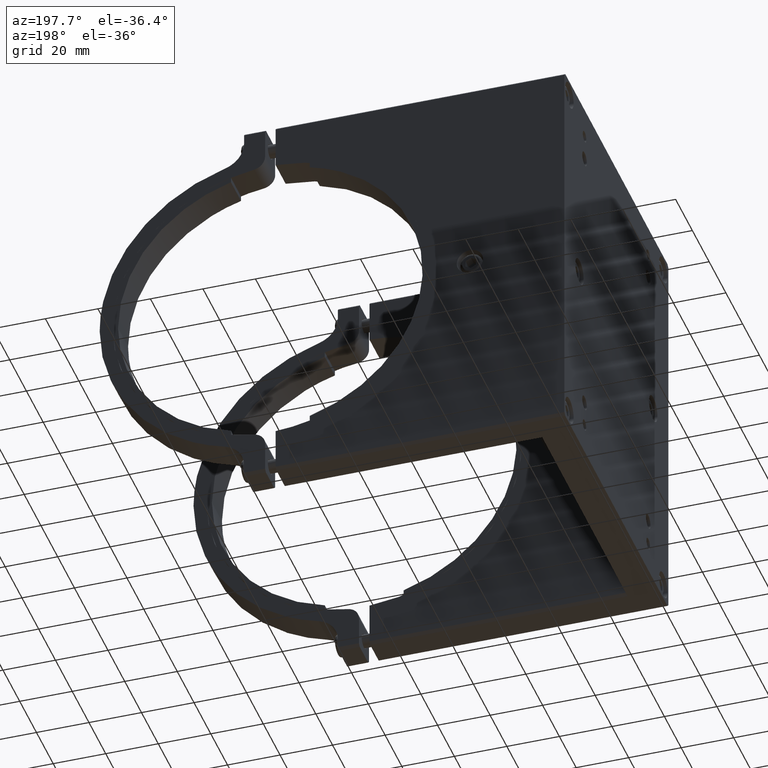
[diagram: clean part render]
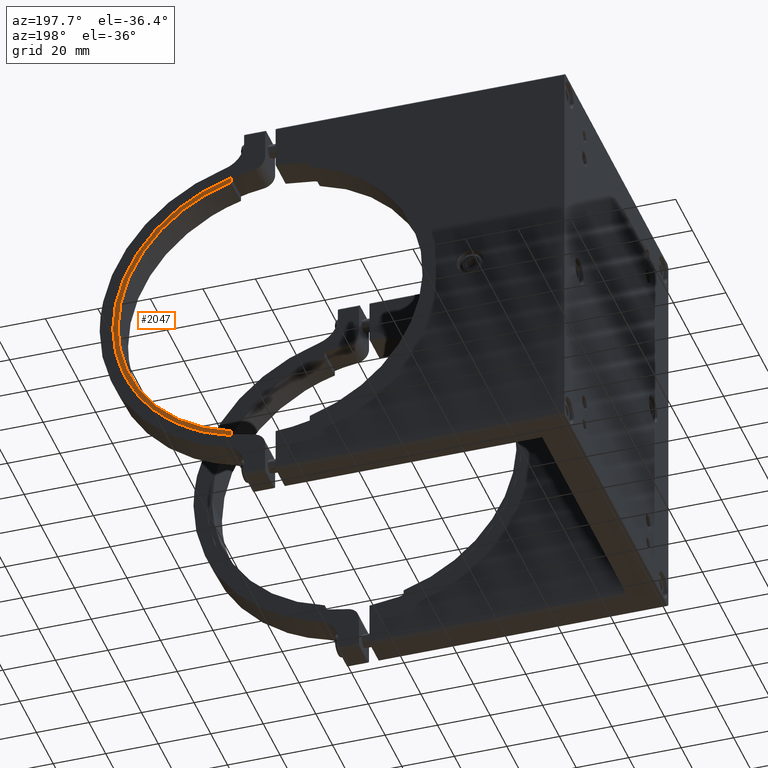
[diagram: same view with one face highlighted and labeled with its STEP entity id]
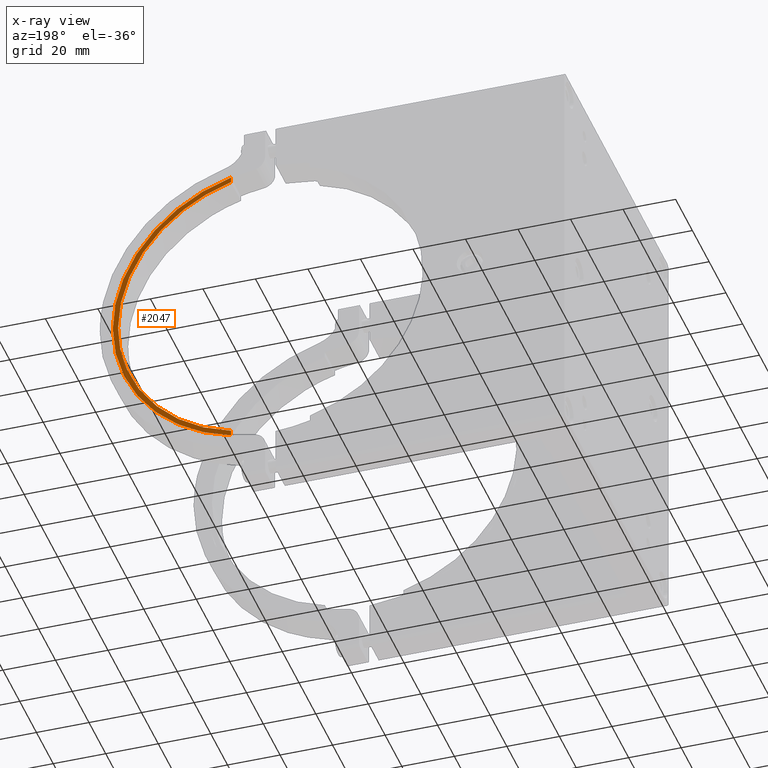
[diagram: x-ray of the same camera — body ghosted, the highlighted face saturated]
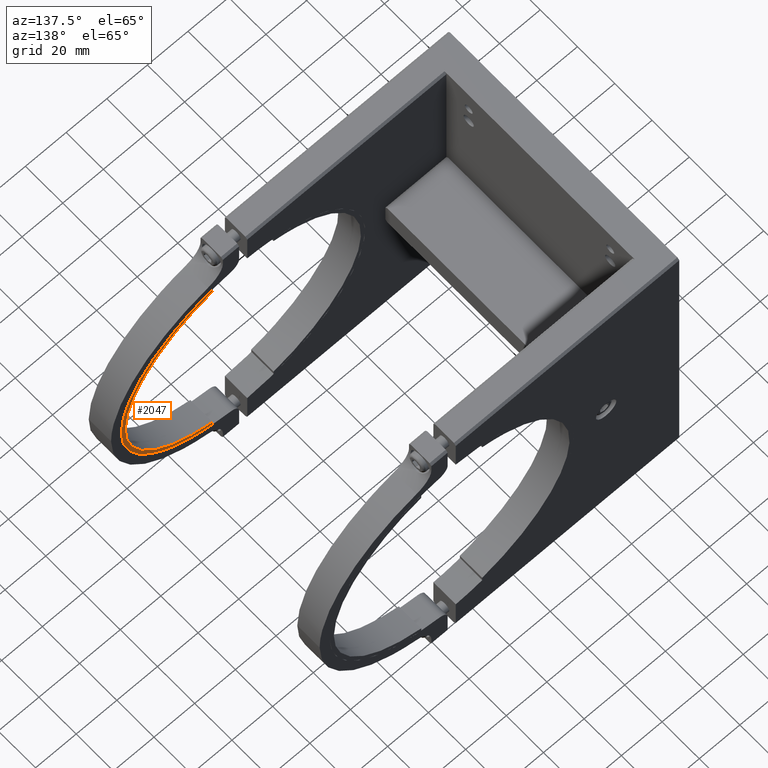
[diagram: same view with one face highlighted and labeled with its STEP entity id]
A machine part, auxiliary view. The second image highlights one B-rep face of the part: STEP entity #2047.
The next image is the same camera in x-ray: the body ghosted, the highlighted face saturated — about 9% of this face is hidden behind the body in this view.
A second angle (auxiliary view) of the same face is appended — the face is thin or edge-on in the first view.
In plain terms, the highlighted face is a freeform B-spline surface patch.
Its self-contained STEP definition (entity closure, byte-faithful):
#131 = CARTESIAN_POINT ( 'NONE',  ( 53.90326453265998197, 12.00000000000000355, -21.64392629879895225 ) ) ;
#334 = EDGE_CURVE ( 'NONE', #6021, #5731, #2093, .T. ) ;
#375 = CARTESIAN_POINT ( 'NONE',  ( 35.74618275338998075, 11.99999999999999822, -48.30198376004523197 ) ) ;
#434 = CARTESIAN_POINT ( 'NONE',  ( 47.93826517070999671, 12.00000000000000178, 32.80158857643337456 ) ) ;
#485 = CARTESIAN_POINT ( 'NONE',  ( 43.18456555049999679, 12.00000000000000000, 41.78474040692492508 ) ) ;
#501 = B_SPLINE_CURVE_WITH_KNOTS ( 'NONE', 3,
 ( #6517, #6669, #1484, #5961, #932, #3173, #4885, #6781, #5160, #3427, #3363, #6746, #131, #1151, #2871, #5129, #5603, #1216 ),
 .UNSPECIFIED., .F., .F.,
 ( 4, 2, 2, 2, 2, 2, 2, 2, 4 ),
 ( 0.0000000000000000000, 0.1636502857520341359, 0.3273005715040682717, 0.4909508572561022133, 0.6546011430081362104, 0.8182514287601703185, 0.9819017145122042045, 1.145552000264238091, 1.309202286016272199 ),
 .UNSPECIFIED. ) ;
#752 = CARTESIAN_POINT ( 'NONE',  ( 14.99999999327684108, 12.00000000000000000, -58.09475018506390143 ) ) ;
#932 = CARTESIAN_POINT ( 'NONE',  ( 29.58321507086998636, 12.00000000000000000, -49.98854717673245318 ) ) ;
#981 = CARTESIAN_POINT ( 'NONE',  ( 57.99999999758999536, 11.99999999999999822, 3.165672055656190587 ) ) ;
#1023 = CARTESIAN_POINT ( 'NONE',  ( 37.33213224668999430, 11.99999999999999822, 44.50093680498707016 ) ) ;
#1074 = CARTESIAN_POINT ( 'NONE',  ( 59.72821998768001350, 12.00000000000000178, 6.588700267044076853 ) ) ;
#1151 = CARTESIAN_POINT ( 'NONE',  ( 55.93871612298001139, 12.00000000000000178, -15.64869054645094693 ) ) ;
#1216 = CARTESIAN_POINT ( 'NONE',  ( 57.99999999919670302, 12.00000000000000000, 3.472003127794894984E-09 ) ) ;
#1346 = ORIENTED_EDGE ( 'NONE', *, *, #2519, .T. ) ;
#1379 = CARTESIAN_POINT ( 'NONE',  ( 15.00000000033100100, 12.00000000000000000, -56.02677930013059893 ) ) ;
#1484 = CARTESIAN_POINT ( 'NONE',  ( 21.04378408596000227, 11.99999999999999822, -54.14037886633396823 ) ) ;
#1511 = CARTESIAN_POINT ( 'NONE',  ( 14.99999999697712028, 12.00000000000000000, 56.02677930102849757 ) ) ;
#1512 = CARTESIAN_POINT ( 'NONE',  ( 55.70474049710999509, 11.99999999999999822, -22.53559663070379315 ) ) ;
#1616 = CARTESIAN_POINT ( 'NONE',  ( 52.64183025780000236, 12.00000000000000178, 24.55319109978275094 ) ) ;
#1661 = ORIENTED_EDGE ( 'NONE', *, *, #6128, .T. ) ;
#1682 = VERTEX_POINT ( 'NONE', #2045 ) ;
#1719 = EDGE_CURVE ( 'NONE', #6719, #5401, #501, .T. ) ;
#2045 = CARTESIAN_POINT ( 'NONE',  ( 15.00000000916409881, 12.00000000000000000, 58.09475018096189558 ) ) ;
#2047 = ADVANCED_FACE ( 'NONE', ( #4874 ), #4599, .T. ) ;
#2093 = B_SPLINE_CURVE_WITH_KNOTS ( 'NONE', 3,
 ( #5990, #3789, #4940, #5523, #3198, #1512, #7171, #7136, #6066, #3679, #3159, #6623, #375, #4229, #4834, #3751, #3235, #7098 ),
 .UNSPECIFIED., .F., .F.,
 ( 4, 2, 2, 2, 2, 2, 2, 2, 4 ),
 ( 0.0000000000000000000, 0.1647645089565442644, 0.3295290179130884733, 0.4942935268696326268, 0.6590580358261768357, 0.8238225447827209891, 0.9885870537392652535, 1.153351562695809740, 1.318116071652353893 ),
 .UNSPECIFIED. ) ;
#2128 = CARTESIAN_POINT ( 'NONE',  ( 44.08347143318999883, 11.99999999999999822, 37.82418577063686627 ) ) ;
#2213 = CARTESIAN_POINT ( 'NONE',  ( 49.45325185659001477, 11.99999999999999822, 34.13571614721730185 ) ) ;
#2244 = CARTESIAN_POINT ( 'NONE',  ( 15.00000000000000000, 12.00000000000000000, -58.79188719500000104 ) ) ;
#2519 = EDGE_CURVE ( 'NONE', #4067, #1682, #4531, .T. ) ;
#2597 = CARTESIAN_POINT ( 'NONE',  ( 41.95370815772999862, 12.00000000000000178, 40.17347199533584501 ) ) ;
#2622 = ORIENTED_EDGE ( 'NONE', *, *, #7231, .T. ) ;
#2631 = CARTESIAN_POINT ( 'NONE',  ( 18.05797250459995951, 12.00000000000000355, 55.20807105024672268 ) ) ;
#2645 = CARTESIAN_POINT ( 'NONE',  ( 54.38244813152998347, 11.99999999999999822, 25.56209237636529608 ) ) ;
#2871 = CARTESIAN_POINT ( 'NONE',  ( 56.70931691154000021, 12.00000000000000178, -12.57278229691552163 ) ) ;
#3064 = CARTESIAN_POINT ( 'NONE',  ( 15.00000000033100100, 12.00000000000000000, -56.02677930013059893 ) ) ;
#3159 = CARTESIAN_POINT ( 'NONE',  ( 43.18456549013998114, 12.00000000000000000, -41.78474040692493219 ) ) ;
#3173 = CARTESIAN_POINT ( 'NONE',  ( 34.84807683686997848, 11.99999999999999645, -46.47185196583306777 ) ) ;
#3198 = CARTESIAN_POINT ( 'NONE',  ( 57.83864238615002051, 12.00000000000000178, -16.29609422677845032 ) ) ;
#3226 = CARTESIAN_POINT ( 'NONE',  ( 56.70931691153999310, 12.00000000000000178, 12.57278229691545945 ) ) ;
#3235 = CARTESIAN_POINT ( 'NONE',  ( 18.19245675756001290, 12.00000000000000178, -57.27046140985500955 ) ) ;
#3239 = CARTESIAN_POINT ( 'NONE',  ( 30.23828591402999422, 12.00000000000000355, 51.92800099578924033 ) ) ;
#3363 = CARTESIAN_POINT ( 'NONE',  ( 49.65682538784000144, 12.00000000000000178, -30.13670804999591724 ) ) ;
#3389 = CARTESIAN_POINT ( 'NONE',  ( 60.26999999999999602, 12.00000000000000000, 58.79188719500000104 ) ) ;
#3427 = CARTESIAN_POINT ( 'NONE',  ( 47.93826511035000948, 11.99999999999999822, -32.80158857643336034 ) ) ;
#3679 = CARTESIAN_POINT ( 'NONE',  ( 45.41507798055000222, 11.99999999999999822, -39.34897621548600455 ) ) ;
#3751 = CARTESIAN_POINT ( 'NONE',  ( 21.31153653405002757, 12.00000000000000178, -56.18442533405102779 ) ) ;
#3775 = ORIENTED_EDGE ( 'NONE', *, *, #1719, .T. ) ;
#3789 = CARTESIAN_POINT ( 'NONE',  ( 59.99999998695001580, 12.00000000000000000, -3.297155172849290494 ) ) ;
#3814 = CARTESIAN_POINT ( 'NONE',  ( 55.93871612297999718, 12.00000000000000178, 15.64869038967263393 ) ) ;
#3831 = CARTESIAN_POINT ( 'NONE',  ( 38.34600147546001381, 12.00000000000000178, 46.26505597080809196 ) ) ;
#3869 = CARTESIAN_POINT ( 'NONE',  ( 51.25404232761000856, 12.00000000000000178, 31.36709075113286360 ) ) ;
#4067 = VERTEX_POINT ( 'NONE', #4660 ) ;
#4229 = CARTESIAN_POINT ( 'NONE',  ( 30.23828591403000843, 12.00000000000000000, -51.92800115256759597 ) ) ;
#4310 = CARTESIAN_POINT ( 'NONE',  ( 57.83864232578999776, 12.00000000000000000, 16.29609407000012666 ) ) ;
#4334 = CARTESIAN_POINT ( 'NONE',  ( 26.81124570540004370, 12.00000000000000178, 51.52842495245194954 ) ) ;
#4350 = CARTESIAN_POINT ( 'NONE',  ( 15.00000000916409881, 12.00000000000000000, 58.09475018096189558 ) ) ;
#4373 = CARTESIAN_POINT ( 'NONE',  ( 49.65682532747999289, 11.99999999999999822, 30.13670804999591013 ) ) ;
#4389 = CARTESIAN_POINT ( 'NONE',  ( 35.74618275339000206, 12.00000000000000178, 48.30198391682360182 ) ) ;
#4426 = CARTESIAN_POINT ( 'NONE',  ( 58.64662093871999815, 12.00000000000000178, 13.09370369797464662 ) ) ;
#4462 = CARTESIAN_POINT ( 'NONE',  ( 21.31153659441001125, 12.00000000000000711, 56.18442517727267216 ) ) ;
#4531 = B_SPLINE_CURVE_WITH_KNOTS ( 'NONE', 1,
 ( #1511, #6656 ),
 .UNSPECIFIED., .F., .F.,
 ( 2, 2 ),
 ( 0.0000000000000000000, 1.000000000000000000 ),
 .UNSPECIFIED. ) ;
#4599 = B_SPLINE_SURFACE_WITH_KNOTS ( 'NONE', 1, 1, ( 
 ( #5627, #2244 ),
 ( #3389, #6771 ) ),
 .UNSPECIFIED., .F., .F., .F.,
 ( 2, 2 ),
 ( 2, 2 ),
 ( 0.0000000000000000000, 1.000000000000000000 ),
 ( 0.0000000000000000000, 1.000000000000000000 ),
 .UNSPECIFIED. ) ;
#4660 = CARTESIAN_POINT ( 'NONE',  ( 14.99999999697712028, 12.00000000000000000, 56.02677930102849757 ) ) ;
#4700 = ORIENTED_EDGE ( 'NONE', *, *, #334, .T. ) ;
#4834 = CARTESIAN_POINT ( 'NONE',  ( 27.33957951668998376, 12.00000000000000178, -53.51092054729176795 ) ) ;
#4854 = B_SPLINE_CURVE_WITH_KNOTS ( 'NONE', 3,
 ( #6569, #981, #7160, #3226, #3814, #7232, #1616, #4373, #434, #2128, #2597, #1023, #6608, #5976, #4334, #5511, #2631, #5403 ),
 .UNSPECIFIED., .F., .F.,
 ( 4, 2, 2, 2, 2, 2, 2, 2, 4 ),
 ( 0.0000000000000000000, 0.1636502857520340248, 0.3273005715040680497, 0.4909508572561021023, 0.6546011430081360993, 0.8182514287601700964, 0.9819017145122042045, 1.145552000264238091, 1.309202286016272199 ),
 .UNSPECIFIED. ) ;
#4874 = FACE_OUTER_BOUND ( 'NONE', #5756, .T. ) ;
#4877 = CARTESIAN_POINT ( 'NONE',  ( 27.33957945632998943, 11.99999999999999822, 53.51092070407010937 ) ) ;
#4885 = CARTESIAN_POINT ( 'NONE',  ( 37.33213224668998720, 11.99999999999999822, -44.50093680498706306 ) ) ;
#4940 = CARTESIAN_POINT ( 'NONE',  ( 59.72821992732001206, 12.00000000000000178, -6.588700110265691023 ) ) ;
#4978 = CARTESIAN_POINT ( 'NONE',  ( 45.41507792019000078, 12.00000000000000178, 39.34897621548600455 ) ) ;
#5129 = CARTESIAN_POINT ( 'NONE',  ( 57.74082452442000601, 12.00000000000000178, -6.326030461353052026 ) ) ;
#5160 = CARTESIAN_POINT ( 'NONE',  ( 44.08347149355001449, 12.00000000000000178, -37.82418577063685916 ) ) ;
#5298 = CARTESIAN_POINT ( 'NONE',  ( 14.99999999327684108, 12.00000000000000000, -58.09475018506390143 ) ) ;
#5401 = VERTEX_POINT ( 'NONE', #6126 ) ;
#5403 = CARTESIAN_POINT ( 'NONE',  ( 14.99999999697712028, 12.00000000000000000, 56.02677930102849757 ) ) ;
#5511 = CARTESIAN_POINT ( 'NONE',  ( 21.04378408595995609, 11.99999999999999822, 54.14037886633399665 ) ) ;
#5523 = CARTESIAN_POINT ( 'NONE',  ( 58.64662099908001380, 12.00000000000000355, -13.09370385475302889 ) ) ;
#5561 = CARTESIAN_POINT ( 'NONE',  ( 59.99999998695000158, 12.00000000000000178, 3.297155172849296711 ) ) ;
#5603 = CARTESIAN_POINT ( 'NONE',  ( 57.99999999759000957, 12.00000000000000178, -3.165672055656136408 ) ) ;
#5610 = B_SPLINE_CURVE_WITH_KNOTS ( 'NONE', 3,
 ( #4350, #7174, #4462, #4877, #3239, #4389, #3831, #485, #4978, #2213, #3869, #2645, #7104, #4310, #4426, #1074, #5561, #6699 ),
 .UNSPECIFIED., .F., .F.,
 ( 4, 2, 2, 2, 2, 2, 2, 2, 4 ),
 ( 0.0000000000000000000, 0.1647645089565441257, 0.3295290179130882513, 0.4942935268696325157, 0.6590580358261768357, 0.8238225447827209891, 0.9885870537392652535, 1.153351562695809740, 1.318116071652353893 ),
 .UNSPECIFIED. ) ;
#5627 = CARTESIAN_POINT ( 'NONE',  ( 15.00000000000000000, 12.00000000000000000, 58.79188719500000104 ) ) ;
#5731 = VERTEX_POINT ( 'NONE', #5298 ) ;
#5756 = EDGE_LOOP ( 'NONE', ( #1661, #1346, #2622, #4700, #6701, #3775 ) ) ;
#5961 = CARTESIAN_POINT ( 'NONE',  ( 26.81124570540000107, 12.00000000000000178, -51.52842495245197796 ) ) ;
#5976 = CARTESIAN_POINT ( 'NONE',  ( 29.58321507086996149, 11.99999999999999822, 49.98854733351085855 ) ) ;
#5990 = CARTESIAN_POINT ( 'NONE',  ( 59.99999999565000763, 12.00000000000000000, 3.591727373580924876E-09 ) ) ;
#6021 = VERTEX_POINT ( 'NONE', #6451 ) ;
#6066 = CARTESIAN_POINT ( 'NONE',  ( 49.45325179622999912, 12.00000000000000178, -34.13571614721728764 ) ) ;
#6126 = CARTESIAN_POINT ( 'NONE',  ( 57.99999999919670302, 12.00000000000000000, 3.472003127794894984E-09 ) ) ;
#6128 = EDGE_CURVE ( 'NONE', #5401, #4067, #4854, .T. ) ;
#6377 = EDGE_CURVE ( 'NONE', #5731, #6719, #7119, .T. ) ;
#6451 = CARTESIAN_POINT ( 'NONE',  ( 59.99999999565000763, 12.00000000000000000, 3.591727373580924876E-09 ) ) ;
#6517 = CARTESIAN_POINT ( 'NONE',  ( 15.00000000033100100, 12.00000000000000000, -56.02677930013059893 ) ) ;
#6569 = CARTESIAN_POINT ( 'NONE',  ( 57.99999999919670302, 12.00000000000000000, 3.472003127794894984E-09 ) ) ;
#6608 = CARTESIAN_POINT ( 'NONE',  ( 34.84807683687004243, 12.00000000000000178, 46.47185180905468371 ) ) ;
#6623 = CARTESIAN_POINT ( 'NONE',  ( 38.34600153582002235, 12.00000000000000178, -46.26505597080807775 ) ) ;
#6656 = CARTESIAN_POINT ( 'NONE',  ( 15.00000000916409881, 12.00000000000000000, 58.09475018096189558 ) ) ;
#6669 = CARTESIAN_POINT ( 'NONE',  ( 18.05797250460000214, 12.00000000000000000, -55.20807105024668715 ) ) ;
#6699 = CARTESIAN_POINT ( 'NONE',  ( 59.99999999565000763, 12.00000000000000000, 3.591727373580924876E-09 ) ) ;
#6701 = ORIENTED_EDGE ( 'NONE', *, *, #6377, .T. ) ;
#6719 = VERTEX_POINT ( 'NONE', #3064 ) ;
#6746 = CARTESIAN_POINT ( 'NONE',  ( 52.64183019744000802, 12.00000000000000355, -24.55319109978275804 ) ) ;
#6771 = CARTESIAN_POINT ( 'NONE',  ( 60.26999999999999602, 12.00000000000000000, -58.79188719500000104 ) ) ;
#6781 = CARTESIAN_POINT ( 'NONE',  ( 41.95370815772999862, 11.99999999999999822, -40.17347199533583790 ) ) ;
#7098 = CARTESIAN_POINT ( 'NONE',  ( 14.99999999327684108, 12.00000000000000000, -58.09475018506390143 ) ) ;
#7104 = CARTESIAN_POINT ( 'NONE',  ( 55.70474055747001785, 12.00000000000000178, 22.53559678748214168 ) ) ;
#7119 = B_SPLINE_CURVE_WITH_KNOTS ( 'NONE', 1,
 ( #752, #1379 ),
 .UNSPECIFIED., .F., .F.,
 ( 2, 2 ),
 ( 0.0000000000000000000, 1.000000000000000000 ),
 .UNSPECIFIED. ) ;
#7136 = CARTESIAN_POINT ( 'NONE',  ( 51.25404232761000145, 11.99999999999999822, -31.36709059435451863 ) ) ;
#7160 = CARTESIAN_POINT ( 'NONE',  ( 57.74082452442001312, 12.00000000000000178, 6.326030461353110645 ) ) ;
#7171 = CARTESIAN_POINT ( 'NONE',  ( 54.38244813152998347, 11.99999999999999822, -25.56209253314365881 ) ) ;
#7174 = CARTESIAN_POINT ( 'NONE',  ( 18.19245675755999514, 12.00000000000000178, 57.27046140985501665 ) ) ;
#7231 = EDGE_CURVE ( 'NONE', #1682, #6021, #5610, .T. ) ;
#7232 = CARTESIAN_POINT ( 'NONE',  ( 53.90326453265997486, 11.99999999999999822, 21.64392645557727946 ) ) ;